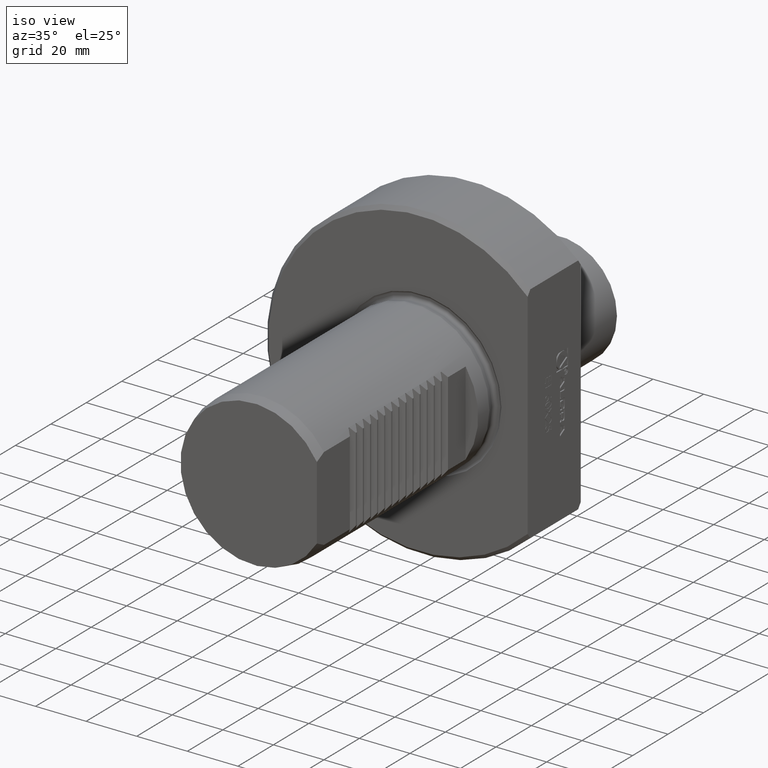
[diagram: clean part render]
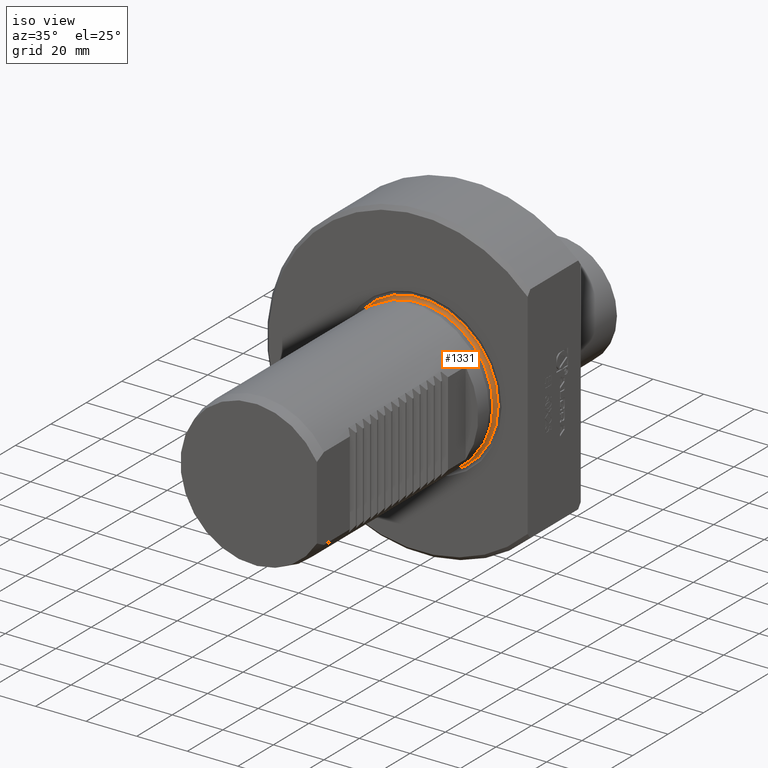
[diagram: same view with one face highlighted and labeled with its STEP entity id]
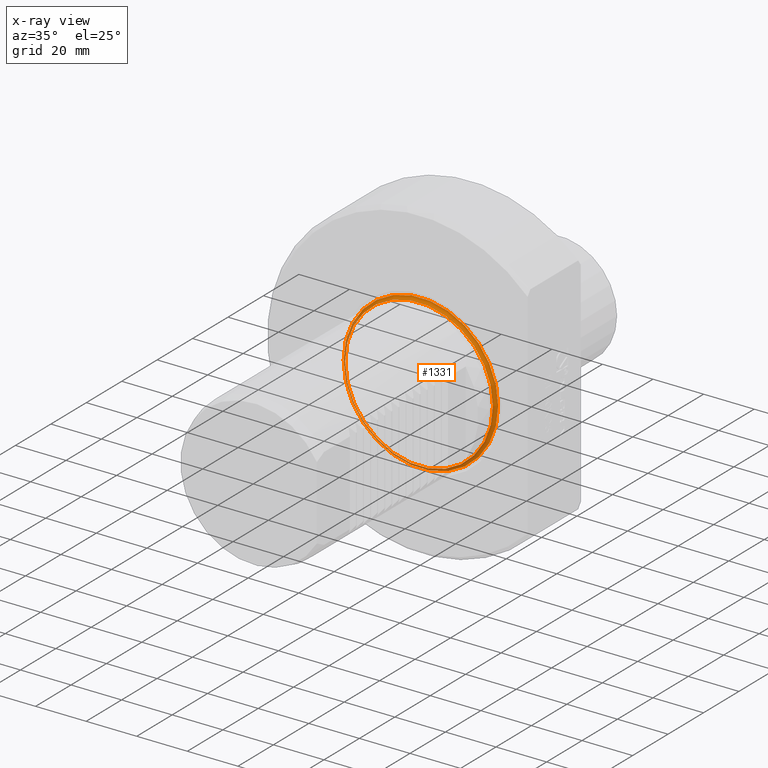
[diagram: x-ray of the same camera — body ghosted, the highlighted face saturated]
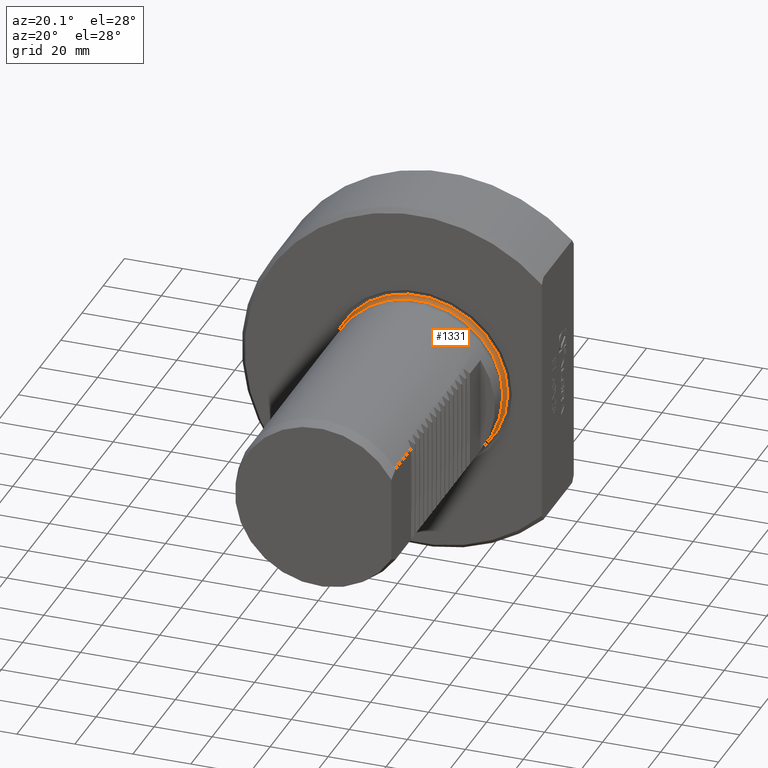
[diagram: same view with one face highlighted and labeled with its STEP entity id]
A machine part, iso view. The second image highlights one B-rep face of the part: STEP entity #1331.
The next image is the same camera in x-ray: the body ghosted, the highlighted face saturated — about 20% of this face is hidden behind the body in this view.
A second angle (auxiliary view) of the same face is appended — the face is thin or edge-on in the first view.
In plain terms, the highlighted toroidal blend (fillet) surface has major radius 30.55 mm and minor (blend) radius 1.2 mm.
Its self-contained STEP definition (entity closure, byte-faithful):
#191 = CARTESIAN_POINT ( 'NONE',  ( -30.54999999999999361, 0.4000000000000008549, 0.000000000000000000 ) ) ;
#392 = ORIENTED_EDGE ( 'NONE', *, *, #5739, .F. ) ;
#1331 = ADVANCED_FACE ( 'Defeature completata1_6', ( #2332, #6633 ), #10011, .F. ) ;
#1768 = DIRECTION ( 'NONE',  ( -1.295371175675670281E-16, 1.000000000000000000, -0.000000000000000000 ) ) ;
#2223 = CIRCLE ( 'NONE', #12017, 30.54999999999999361 ) ;
#2332 = FACE_OUTER_BOUND ( 'NONE', #12422, .T. ) ;
#4681 = CARTESIAN_POINT ( 'NONE',  ( 0.000000000000000000, -0.7999999999999948264, 0.000000000000000000 ) ) ;
#4905 = CARTESIAN_POINT ( 'NONE',  ( -29.34999999999999432, -0.7999999999999987121, 0.000000000000000000 ) ) ;
#5274 = AXIS2_PLACEMENT_3D ( 'NONE', #12845, #11608, #10749 ) ;
#5721 = AXIS2_PLACEMENT_3D ( 'NONE', #4681, #6934, #11026 ) ;
#5739 = EDGE_CURVE ( 'NONE', #14072, #14072, #2223, .T. ) ;
#6558 = ORIENTED_EDGE ( 'NONE', *, *, #12026, .T. ) ;
#6633 = FACE_OUTER_BOUND ( 'NONE', #12966, .T. ) ;
#6934 = DIRECTION ( 'NONE',  ( -1.295371175675670281E-16, 1.000000000000000000, -0.000000000000000000 ) ) ;
#7264 = CARTESIAN_POINT ( 'NONE',  ( -5.181484702702743123E-17, 0.4000000000000047962, 0.000000000000000000 ) ) ;
#9581 = CIRCLE ( 'NONE', #5274, 29.34999999999999432 ) ;
#10011 = TOROIDAL_SURFACE ( 'NONE', #5721, 30.54999999999999361, 1.199999999999999734 ) ;
#10342 = DIRECTION ( 'NONE',  ( -1.000000000000000000, -1.295364297732272230E-16, 0.000000000000000000 ) ) ;
#10443 = VERTEX_POINT ( 'NONE', #4905 ) ;
#10749 = DIRECTION ( 'NONE',  ( -1.000000000000000000, -1.292915708245065120E-16, 0.000000000000000000 ) ) ;
#11026 = DIRECTION ( 'NONE',  ( -1.000000000000000000, -1.295371175675670281E-16, 0.000000000000000000 ) ) ;
#11608 = DIRECTION ( 'NONE',  ( -1.295371175675670281E-16, 1.000000000000000000, -0.000000000000000000 ) ) ;
#12017 = AXIS2_PLACEMENT_3D ( 'NONE', #7264, #1768, #10342 ) ;
#12026 = EDGE_CURVE ( 'NONE', #10443, #10443, #9581, .T. ) ;
#12422 = EDGE_LOOP ( 'NONE', ( #6558 ) ) ;
#12845 = CARTESIAN_POINT ( 'NONE',  ( 1.036296940540529643E-16, -0.7999999999999949374, 0.000000000000000000 ) ) ;
#12966 = EDGE_LOOP ( 'NONE', ( #392 ) ) ;
#14072 = VERTEX_POINT ( 'NONE', #191 ) ;